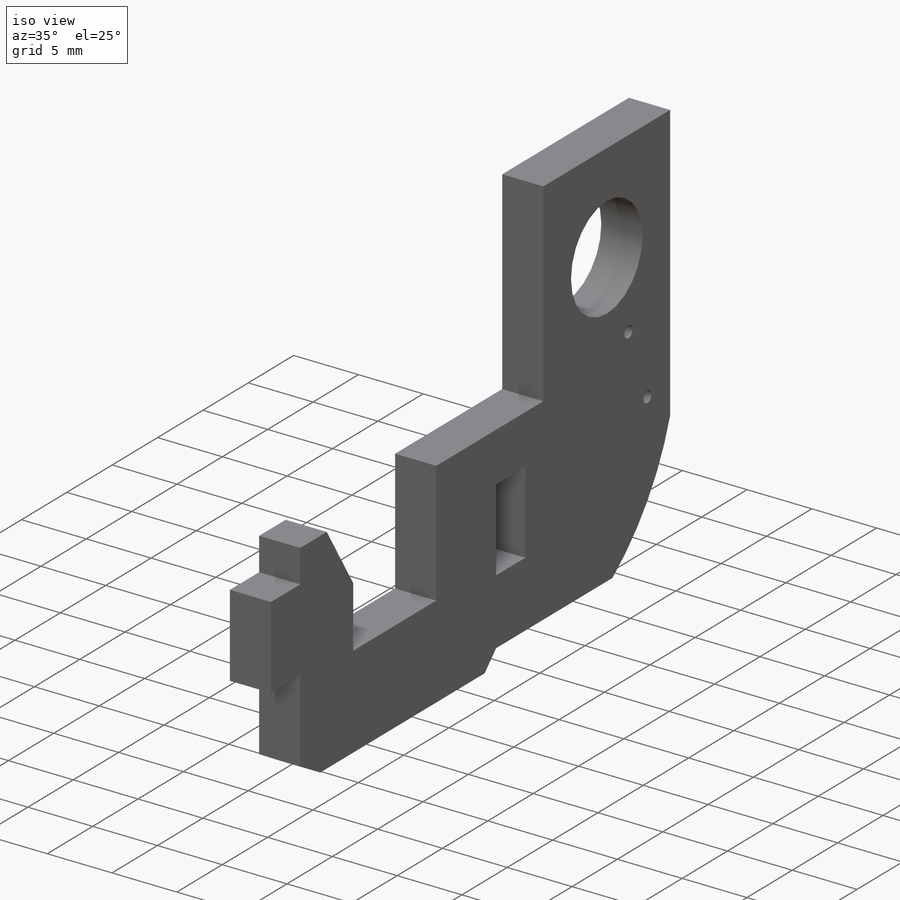
[diagram: iso view]
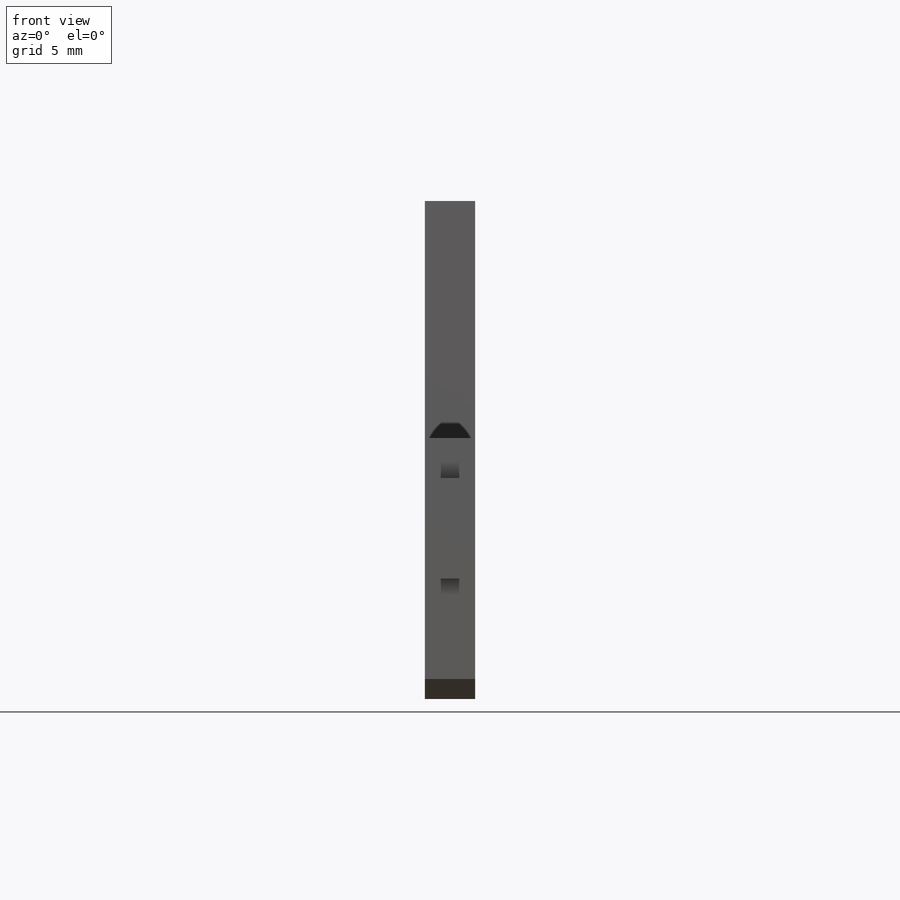
[diagram: front view]
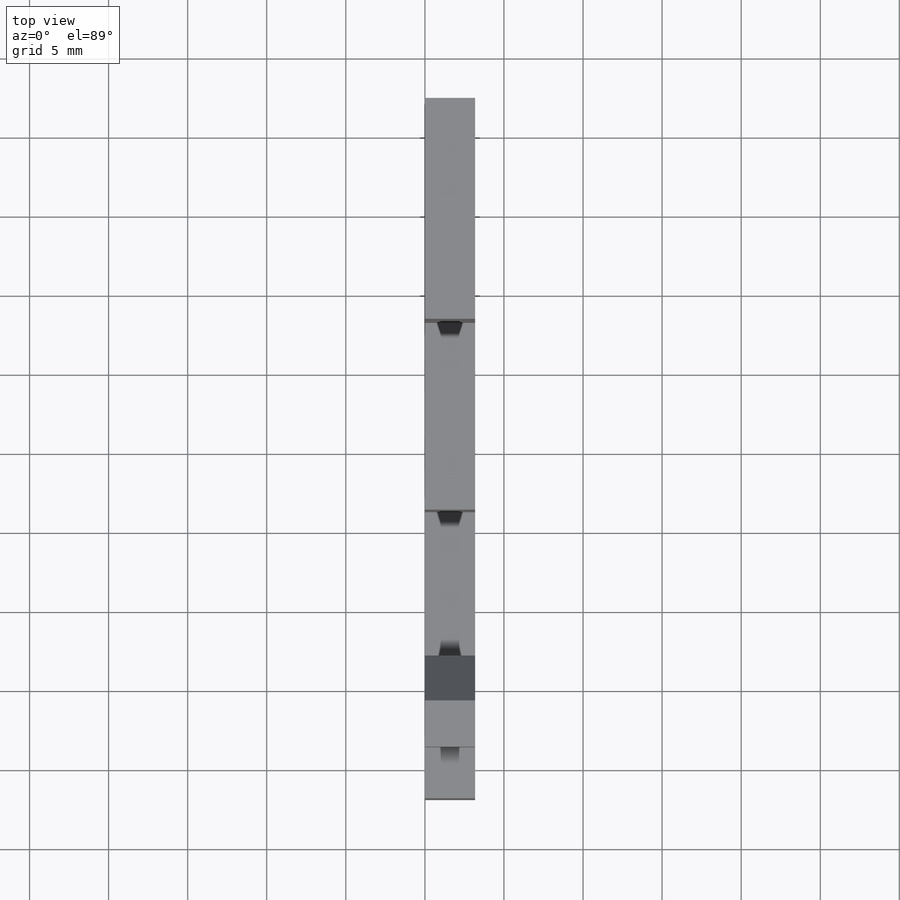
[diagram: top view]
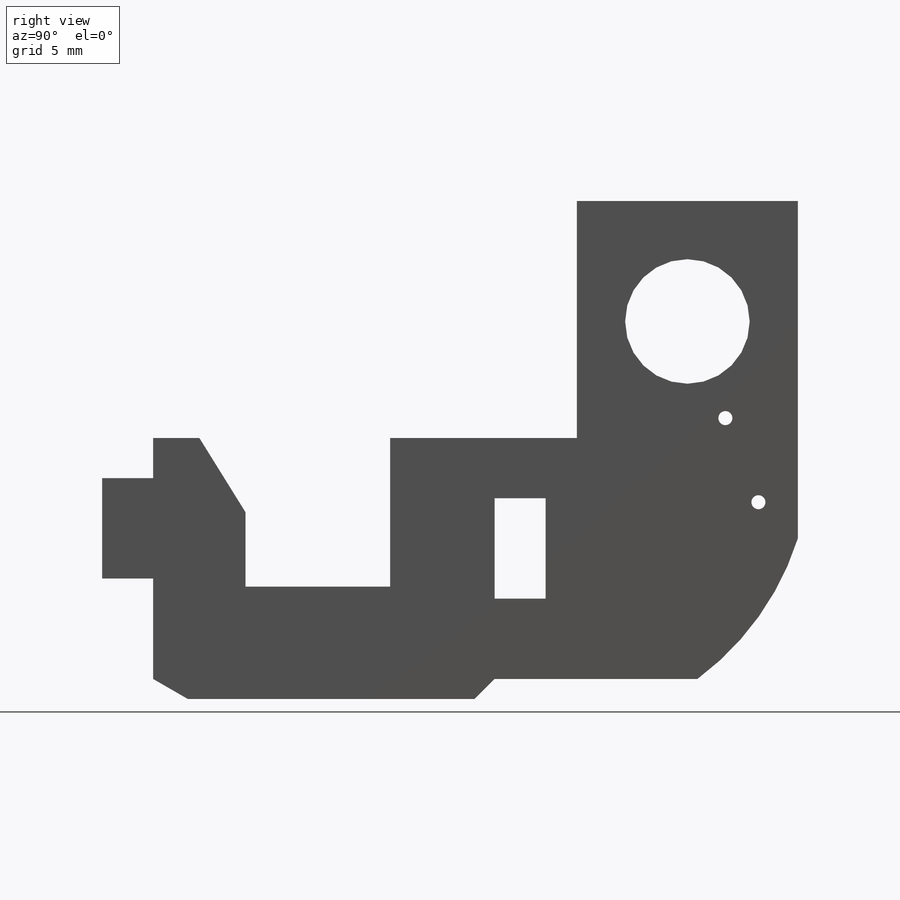
[diagram: right view]
SOLIDWORKS PART (.sldprt)
format: sldprt  version: not decoded by parser v0  size: 328,704 bytes
history: native  units: mm
features: sketch x3, extrude x2, material x1, cut_extrude x1 (+16 scaffold rows collapsed)
feature tree (23):
  scaffold x16  (default folders/planes/origin — collapsed)
  material  "Material <not specified>"
  sketch  "Sketch1"  dims[c1.D11=6.35mm c1.D12=0.9398mm c1.D13=0.9398mm c1.D6=0.508mm c1.D7=0.508mm c1.D8=5.842mm c2.D6=5.588mm c2.D7=0.508mm c2.D8=0.508mm c3.D6=5.588mm c3.D7=0.508mm c3.D8=0.508mm c4.D6=7.874mm c4.D1=~3.994463mm c4.D2=7.874mm c5.D6=7.874mm c5.D8=7.874mm c5.D19=0.508mm c5.D20=0.508mm c5.D22=0.889mm c5.D23=0.889mm c5.D1=26.2128mm c5.D2=5.715mm c5.D3=6.35mm c5.D4=5.715mm c5.D5=3.2258mm c6.D6=26.2128mm c7.D6=150.0deg c7.D7=18.542mm c7.D8=4.191mm c7.D9=26.2128mm c8.D9=165.0deg c8.D10=7.8994mm c8.D14=33.8582mm c8.D15=37.8714mm c8.D16=42.4688mm c8.D17=3.0988mm c8.D18=1.5748mm c8.D19=5.6388mm c8.D20=12.7mm c8.D21=3.2258mm c8.D22=6.35mm c8.D23=5.715mm c8.D1=6.604mm c8.D2=6.35mm c8.D3=3.175mm c8.D4=12.7mm c9.D1=7.366mm c9.D2=3.2258mm c9.D3=6.35mm c9.D4=3.2258mm c9.D5=3.175mm c9.D7=3.175mm c9.D8=~26.070691mm c10.D1=12.7mm c10.D2=15.24mm c10.D3=7.62mm c10.D4=6.985mm c10.D5=6.985mm c10.D6=31.75mm c10.D7=25.4mm c11.D7=100.0deg c11.D8=50.8mm c11.D9=6.35mm c11.D10=2.54mm c11.D11=3.2258mm c11.D6=7.366mm c12.D8=33.782mm c12.D7=15.24mm c13.D7=90.0deg c13.D12=6.35mm c13.D13=6.35mm c13.D14=3.2258mm c13.D15=21.59mm c13.D16=5.842mm c13.D17=9.144mm c13.D18=9.398mm c13.D19=6.5659mm c13.D21=11.8364mm c14.D13=21.59mm c14.D14=5.08mm c14.D15=3.2258mm c14.D21=6.35mm]
  extrude  "Boss-Extrude1"  Depth=3.175mm
  sketch  "Sketch2"  dims[c1.D1=~21.642781mm c2.D1=45.0deg c2.D2=19.05mm c2.D3=2.54mm c3.D2=~13.720206mm c4.D2=150.0deg c4.D3=1.27mm]
  extrude  "Boss-Extrude2"  Depth=3.175mm
  sketch  "Sketch3"  dims[D3=17.78mm D1=6.35mm D2=8.89mm]
  cut_extrude  "Cut-Extrude1"  [1 undecoded]
decode coverage: 5 of 6 modeling features carry decoded parameters
note: ~ marks probable driven/reference dimensions
note: 1 parameter value undecoded
note: suppression state not decoded; provenance and decode notes live in map.json
